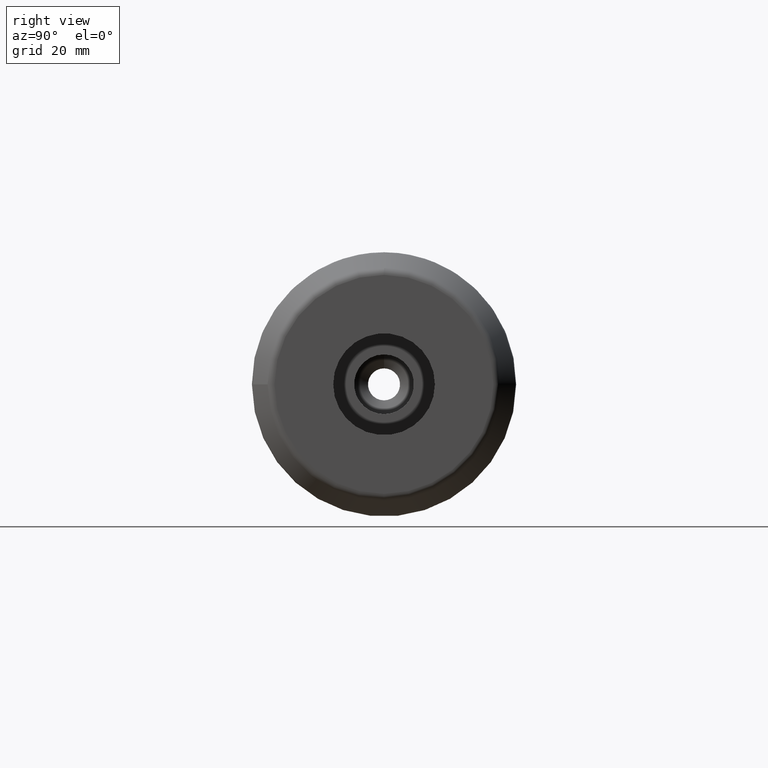
[diagram: clean part render]
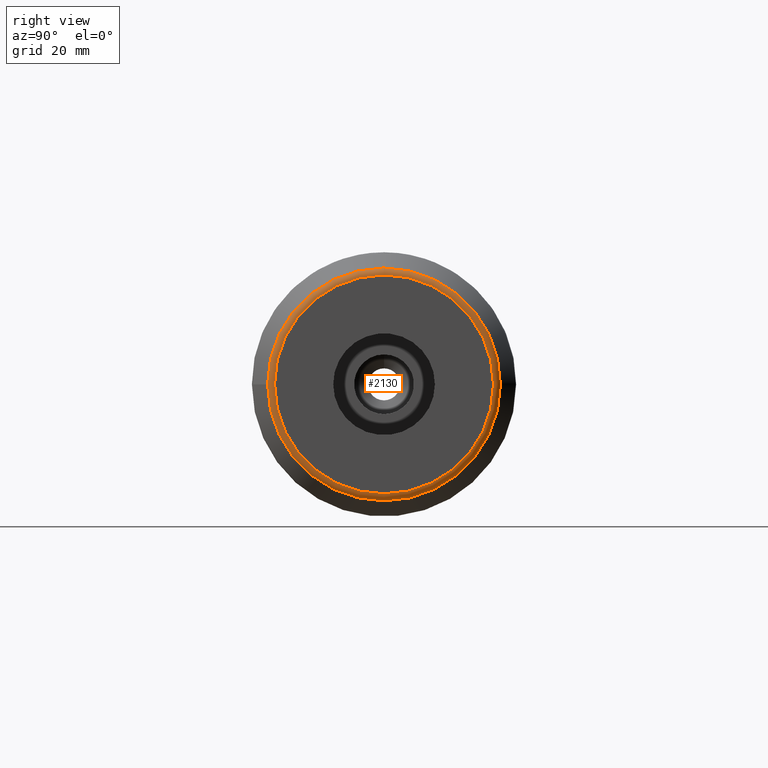
[diagram: same view with one face highlighted and labeled with its STEP entity id]
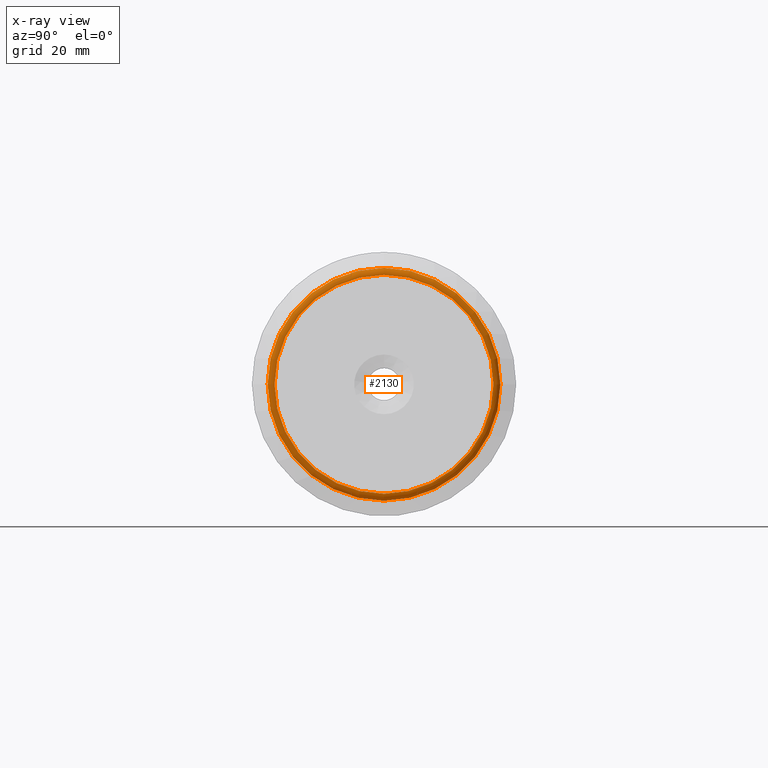
[diagram: x-ray of the same camera — body ghosted, the highlighted face saturated]
A machine part, right view. The second image highlights one B-rep face of the part: STEP entity #2130.
The next image is the same camera in x-ray: the body ghosted, the highlighted face saturated — about 0% of this face is hidden behind the body in this view.
In plain terms, the highlighted toroidal blend (fillet) surface has major radius 27.3453 mm and minor (blend) radius 2 mm.
Its self-contained STEP definition (entity closure, byte-faithful):
#60=TOROIDAL_SURFACE('',#2352,27.3452994616207,2.);
#218=FACE_OUTER_BOUND('',#328,.T.);
#328=EDGE_LOOP('',(#1621,#1622,#1623,#1624,#1625,#1626,#1627));
#715=CIRCLE('',#2349,29.0773502691896);
#716=CIRCLE('',#2350,29.0773502691896);
#717=CIRCLE('',#2351,29.0773502691896);
#718=CIRCLE('',#2353,27.3452994616207);
#719=CIRCLE('',#2354,2.);
#720=CIRCLE('',#2355,27.3452994616207);
#900=VERTEX_POINT('',#3639);
#901=VERTEX_POINT('',#3640);
#902=VERTEX_POINT('',#3642);
#903=VERTEX_POINT('',#3647);
#904=VERTEX_POINT('',#3648);
#1175=EDGE_CURVE('',#900,#901,#715,.T.);
#1176=EDGE_CURVE('',#902,#900,#716,.T.);
#1178=EDGE_CURVE('',#901,#902,#717,.T.);
#1179=EDGE_CURVE('',#903,#904,#718,.T.);
#1180=EDGE_CURVE('',#904,#901,#719,.T.);
#1181=EDGE_CURVE('',#904,#903,#720,.T.);
#1621=ORIENTED_EDGE('',*,*,#1179,.T.);
#1622=ORIENTED_EDGE('',*,*,#1180,.T.);
#1623=ORIENTED_EDGE('',*,*,#1178,.T.);
#1624=ORIENTED_EDGE('',*,*,#1176,.T.);
#1625=ORIENTED_EDGE('',*,*,#1175,.T.);
#1626=ORIENTED_EDGE('',*,*,#1180,.F.);
#1627=ORIENTED_EDGE('',*,*,#1181,.T.);
#2130=ADVANCED_FACE('',(#218),#60,.T.);
#2349=AXIS2_PLACEMENT_3D('',#3641,#2807,#2808);
#2350=AXIS2_PLACEMENT_3D('',#3643,#2809,#2810);
#2351=AXIS2_PLACEMENT_3D('',#3645,#2812,#2813);
#2352=AXIS2_PLACEMENT_3D('',#3646,#2814,#2815);
#2353=AXIS2_PLACEMENT_3D('',#3649,#2816,#2817);
#2354=AXIS2_PLACEMENT_3D('',#3650,#2818,#2819);
#2355=AXIS2_PLACEMENT_3D('',#3651,#2820,#2821);
#2807=DIRECTION('center_axis',(1.,0.,0.));
#2808=DIRECTION('ref_axis',(0.,-1.,3.06161699786838E-17));
#2809=DIRECTION('center_axis',(1.,0.,0.));
#2810=DIRECTION('ref_axis',(0.,-1.,3.06161699786838E-17));
#2812=DIRECTION('center_axis',(1.,0.,0.));
#2813=DIRECTION('ref_axis',(0.,-1.,3.06161699786838E-17));
#2814=DIRECTION('center_axis',(1.,0.,0.));
#2815=DIRECTION('ref_axis',(0.,0.,-1.));
#2816=DIRECTION('center_axis',(-1.,0.,0.));
#2817=DIRECTION('ref_axis',(0.,-1.,1.83697019872103E-16));
#2818=DIRECTION('center_axis',(0.,-1.,-1.22464679914735E-16));
#2819=DIRECTION('ref_axis',(0.,-1.22464679914735E-16,1.));
#2820=DIRECTION('center_axis',(-1.,0.,0.));
#2821=DIRECTION('ref_axis',(0.,-1.,1.83697019872103E-16));
#3639=CARTESIAN_POINT('',(87.9,29.0773502691896,-1.78047419674247E-15));
#3640=CARTESIAN_POINT('',(87.9,-3.56094839348495E-15,29.0773502691896));
#3641=CARTESIAN_POINT('Origin',(87.9,0.,-4.45118549185619E-15));
#3642=CARTESIAN_POINT('',(87.9,-29.0773502691896,-3.56094839348495E-15));
#3643=CARTESIAN_POINT('Origin',(87.9,0.,-4.45118549185619E-15));
#3645=CARTESIAN_POINT('Origin',(87.9,0.,-4.45118549185619E-15));
#3646=CARTESIAN_POINT('Origin',(86.9,0.,0.));
#3647=CARTESIAN_POINT('',(88.9,27.3452994616207,-8.37208336434992E-15));
#3648=CARTESIAN_POINT('',(88.9,-3.34883334573997E-15,27.3452994616207));
#3649=CARTESIAN_POINT('Origin',(88.9,0.,0.));
#3650=CARTESIAN_POINT('Origin',(86.9,-3.34883334573997E-15,27.3452994616207));
#3651=CARTESIAN_POINT('Origin',(88.9,0.,0.));